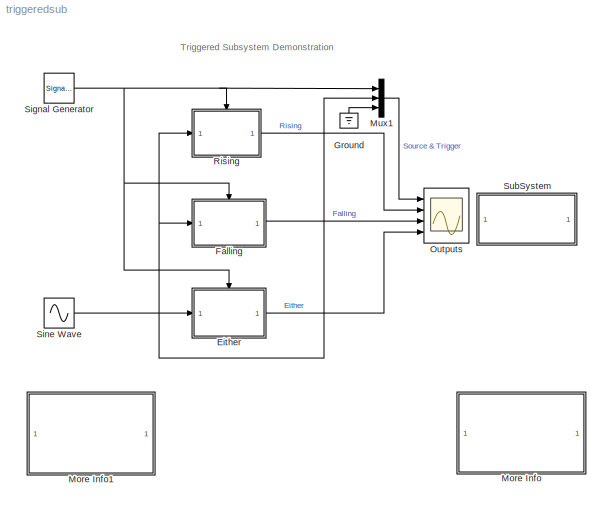
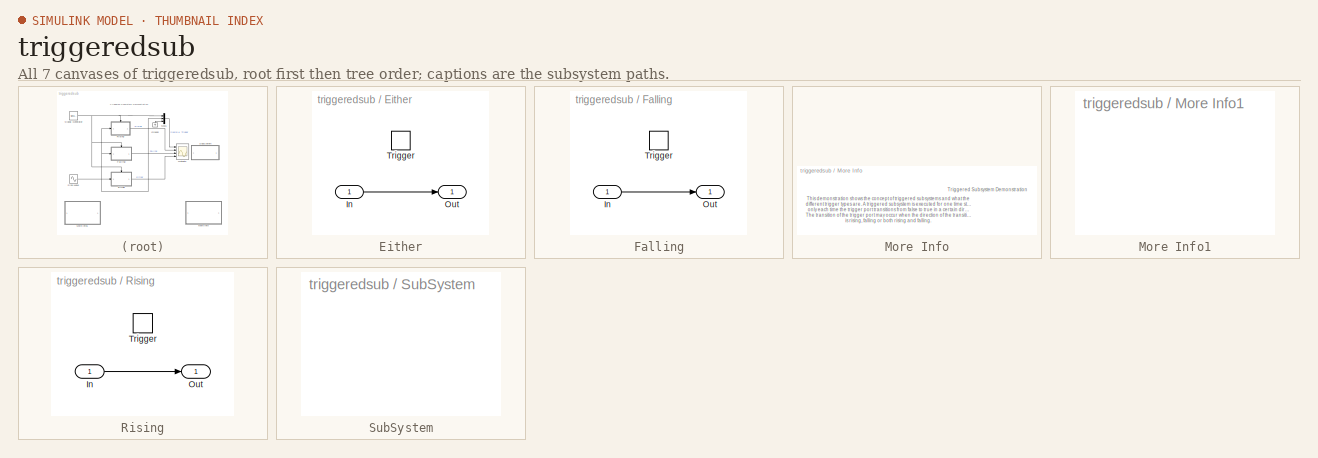
[diagram: thumbnail index - all 7 canvases of the model, root first then tree order]
MODEL triggeredsub
KIND model
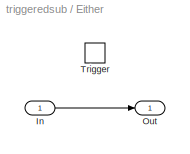
BLOCK [SubSystem] Either
  MinAlgLoopOccurrences = off
  Ports = [1, 1, 0, 1]
  PropExecContextAcrossSSBoundary = on
  RTWSystemCode = Auto
  TreatAsAtomicUnit = off
BLOCK [Inport] Either/In
  IconDisplay = Port number
  LatchInput = off
  Port = 1
BLOCK [Outport] Either/Out
  IconDisplay = Port number
  InitialOutput = 0
BLOCK [TriggerPort] Either/Trigger
  Ports = []
  TriggerType = either
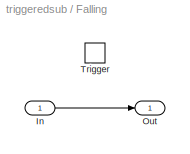
BLOCK [SubSystem] Falling
  MinAlgLoopOccurrences = off
  Ports = [1, 1, 0, 1]
  PropExecContextAcrossSSBoundary = on
  RTWSystemCode = Auto
  TreatAsAtomicUnit = off
BLOCK [Inport] Falling/In
  IconDisplay = Port number
  LatchInput = off
  Port = 1
BLOCK [Outport] Falling/Out
  IconDisplay = Port number
  InitialOutput = 0
BLOCK [TriggerPort] Falling/Trigger
  Ports = []
  TriggerType = falling
BLOCK [Ground] Ground
BLOCK [SubSystem] More Info
  MaskDisplay = disp('Double click\\nhere for\\ninformation on\\nthis demonstration')
  MaskIconFrame = on
  MaskIconOpaque = on
  MaskIconRotate = none
  MaskIconUnits = autoscale
  MinAlgLoopOccurrences = off
  Ports = []
  PropExecContextAcrossSSBoundary = on
  RTWSystemCode = Auto
  TreatAsAtomicUnit = off
BLOCK [SubSystem] More Info1
  MaskDisplay = disp('Double click\\nhere for\\nSimulink Help')
  MaskIconFrame = on
  MaskIconOpaque = on
  MaskIconRotate = none
  MaskIconUnits = autoscale
  MinAlgLoopOccurrences = off
  OpenFcn = simcad(bdroot);
  Ports = []
  PropExecContextAcrossSSBoundary = on
  RTWSystemCode = Auto
  TreatAsAtomicUnit = off
BLOCK [Mux] Mux1
  DisplayOption = bar
  Inputs = 3
  Ports = [3, 1]
BLOCK [Scope] Outputs
  DataFormat = Structure
  LimitDataPoints = off
  NumInputPorts = 4
  Ports = [4]
  SaveName = trigsubdata
  SaveToWorkspace = on
  StartFcn = open_system(gcbh)
  TickLabels = on
  TimeRange = 8
  YMax = 1.5~1.5~1.5~1.5
  YMin = -1.5~-1.5~-1.5~-1.5
BLOCK [SubSystem] Rising
  MinAlgLoopOccurrences = off
  Ports = [1, 1, 0, 1]
  PropExecContextAcrossSSBoundary = on
  RTWSystemCode = Auto
  TreatAsAtomicUnit = off
BLOCK [Inport] Rising/In
  IconDisplay = Port number
  LatchInput = off
  Port = 1
BLOCK [Outport] Rising/Out
  IconDisplay = Port number
  InitialOutput = 0
BLOCK [TriggerPort] Rising/Trigger
  Ports = []
BLOCK [SignalGenerator] Signal Generator
  Amplitude = 0.5
  AttributesFormatString = Waveform: %<waveform>\\nFreq: %<Frequency> %<Units>
  Ports = [0, 1]
  WaveForm = square
BLOCK [Sin] Sine Wave
  AttributesFormatString = Freq: %<Frequency> rad/sec
  Frequency = 8
  Ports = [0, 1]
  SampleTime = 0
BLOCK [SubSystem] SubSystem
  MaskDescription = Turn on/off the crosshair pointer on the scope named Outputs.
  MaskDisplay = disp(['Scope\\nCrosshair\\n' sch])
  MaskEnableString = on
  MaskIconFrame = on
  MaskIconOpaque = on
  MaskIconRotate = none
  MaskIconUnits = autoscale
  MaskInitialization = f=get_param([gcs '/Outputs'],'Figure');\nif strcmp(sch,'on'),\n  ptr='fullcrosshair';\nelse,\n  ptr= 'arrow';\nend\nset(f,'pointer',ptr)\n
  MaskPromptString = Scope crosshair
  MaskStyleString = checkbox
  MaskToolTipString = on
  MaskTunableValueString = on
  MaskType = Scope Crosshair
  MaskValueString = off
  MaskVariables = sch=&1;
  MaskVisibilityString = on
  MinAlgLoopOccurrences = off
  OpenFcn = if strcmp(get_param(gcb,'sch'),'on'),val='off';else,val='on';end;set_param(gcb,'sch',val)
  Ports = []
  PropExecContextAcrossSSBoundary = on
  RTWSystemCode = Auto
  TreatAsAtomicUnit = off
ANNOTATION (root): Triggered Subsystem Demonstration
ANNOTATION More Info: This demonstration shows the concept of triggered subsystems and what the \ndifferent trigger types are. A triggered subsystem is executed for one time step\nonly each time the trigger port transitions from false to true in a certain direction.\nThe transition of the trigger port may occur when the direction of the transition\nis rising, falling or both rising and falling.\n\nA rising transition o...<+814ch>
ANNOTATION More Info: Triggered Subsystem Demonstration
LINE Either/In:1 -> Either/Out:1
LINE Either:1 -> Outputs:4
LINE Falling/In:1 -> Falling/Out:1
LINE Falling:1 -> Outputs:3
LINE Ground:1 -> Mux1:3
LINE Mux1:1 -> Outputs:1
LINE Rising/In:1 -> Rising/Out:1
LINE Rising:1 -> Outputs:2
NET Signal Generator:1 -> Either:trigger, Falling:trigger, Mux1:1, Rising:trigger
NET Sine Wave:1 -> Either:1, Falling:1, Mux1:2, Rising:1
note: NET lines group one-source signal fan-out (src -> all destinations, sorted); 1:1 wires keep LINE
